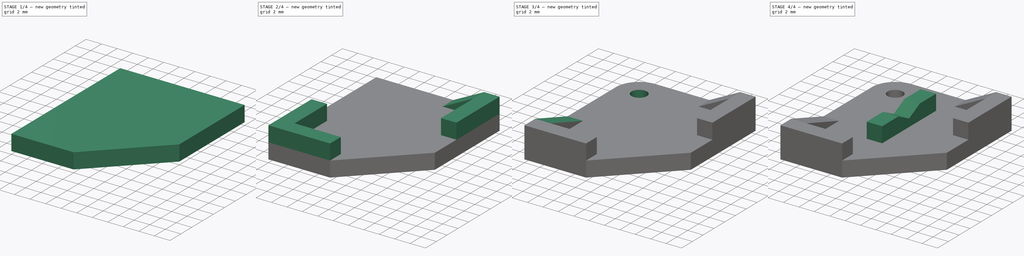
[diagram: build sequence overview — one tinted view per stage of 4, left to right]
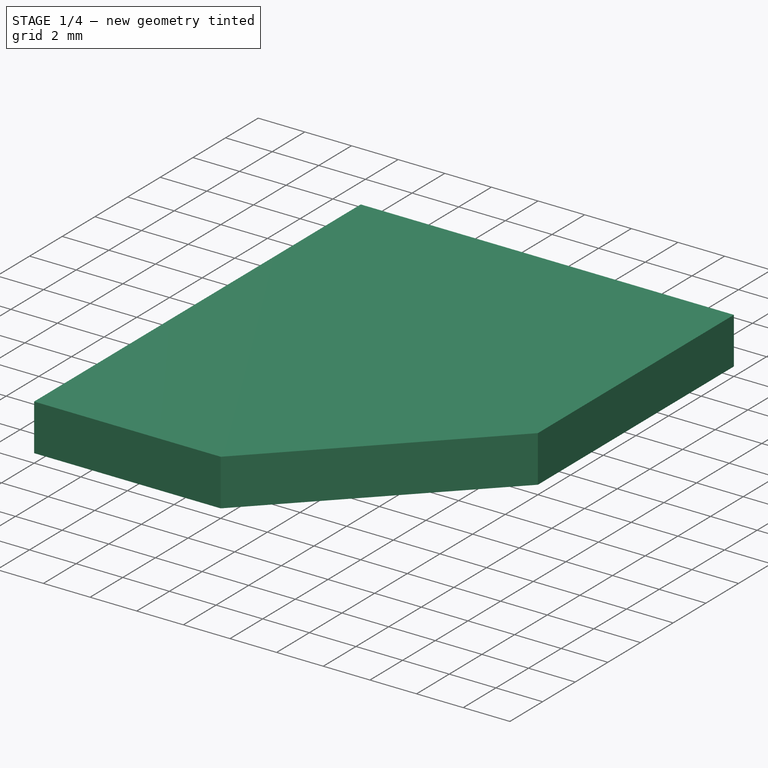
[diagram: stage 1 of 4 — iso view after this stage's code; geometry added in this stage tinted green]
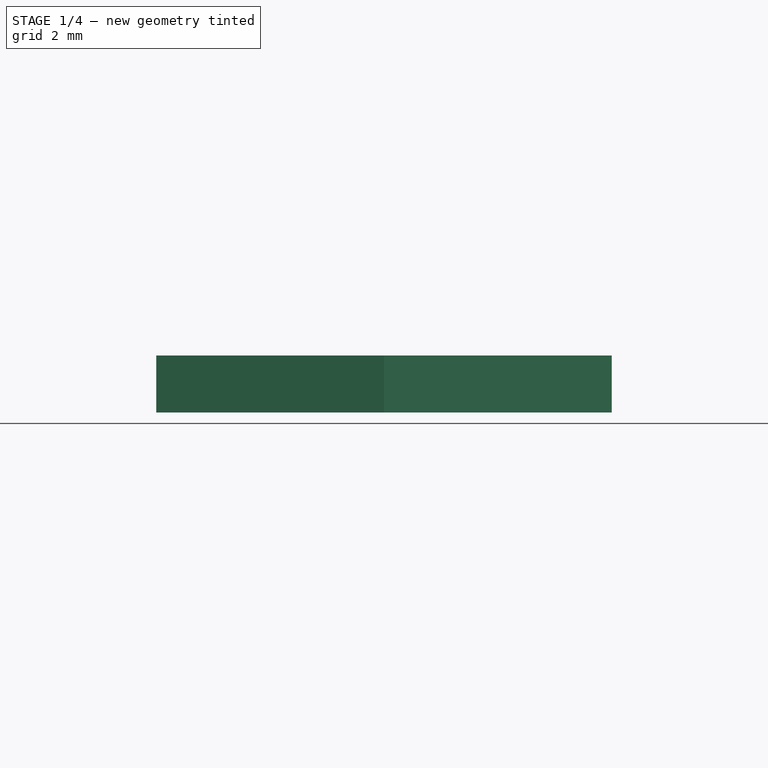
[diagram: stage 1 of 4 — front view after this stage's code; geometry added in this stage tinted green]
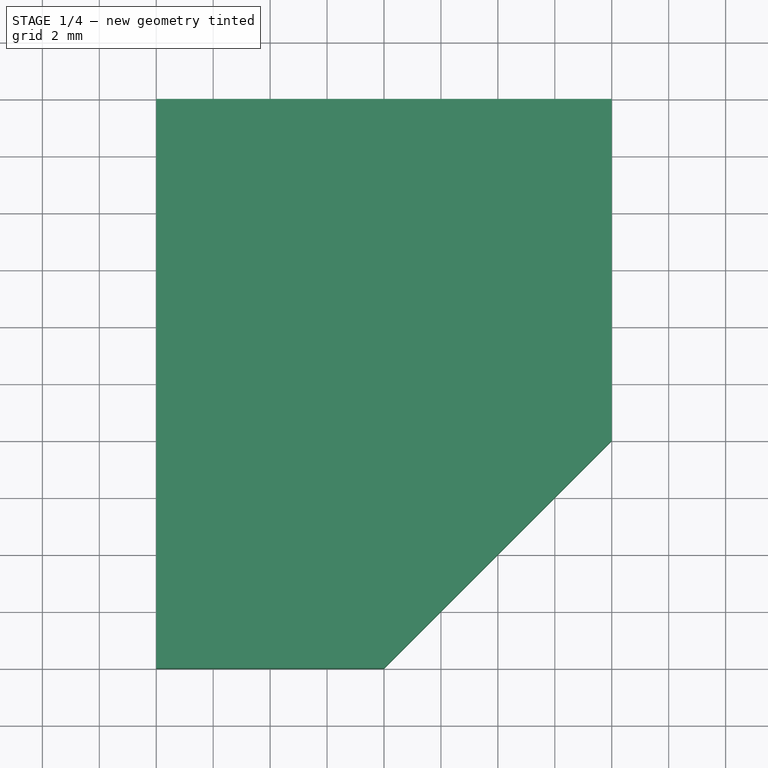
[diagram: stage 1 of 4 — top view after this stage's code; geometry added in this stage tinted green]
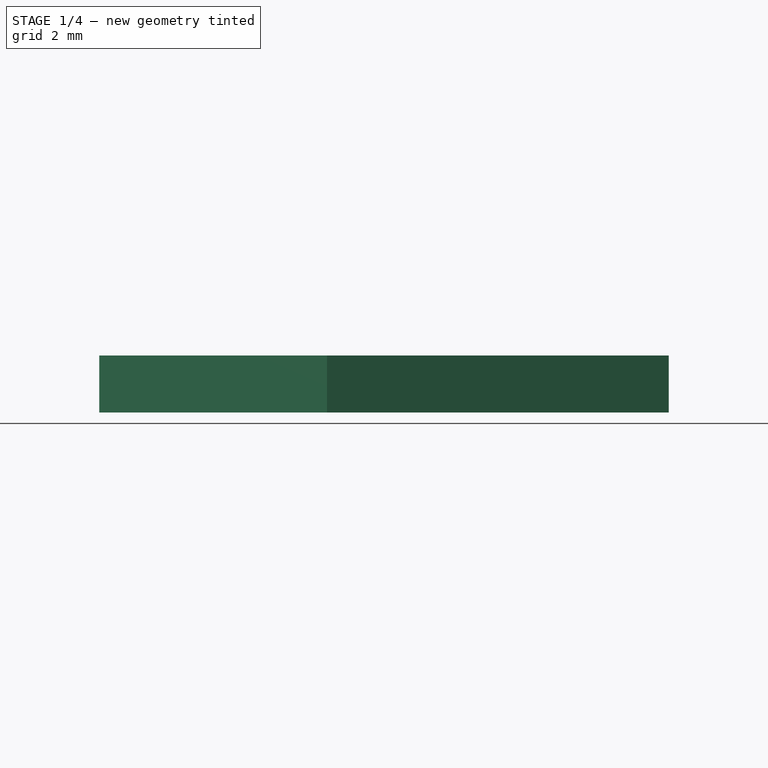
[diagram: stage 1 of 4 — right view after this stage's code; geometry added in this stage tinted green]
FCSTD DOCUMENT  (FreeCAD 0.18R4 (GitTag))
Label: quiz 6
License: All rights reserved
LicenseURL: http://en.wikipedia.org/wiki/All_rights_reserved
objects: Sketcher::SketchObject×8, PartDesign::Pocket×5, PartDesign::Pad×3, PartDesign::Fillet×1, PartDesign::Body×1
note: 26 computed .brp shape members not serialized (recipe doc carries the construction recipe); baked Part::Feature solids carry a one-line shape summary decoded from their .brp

FEATURE [Sketcher::SketchObject] Sketch
  MapMode = 5
  Support = -> [XY_Plane]
  sketch-geometry (4):
    g0: LineSegment StartX=0 StartY=0 StartZ=0 EndX=16 EndY=0 EndZ=0
    g1: LineSegment StartX=16 StartY=0 StartZ=0 EndX=16 EndY=20 EndZ=0
    g2: LineSegment StartX=16 StartY=20 StartZ=0 EndX=0 EndY=20 EndZ=0
    g3: LineSegment StartX=0 StartY=20 StartZ=0 EndX=0 EndY=0 EndZ=0
  constraints (11):
    c: Coincident(g0,g1)
    c: Coincident(g1,g2)
    c: Coincident(g2,g3)
    c: Coincident(g3,g0)
    c: Horizontal(g0)
    c: Horizontal(g2)
    c: Vertical(g1)
    c: Vertical(g3)
    c: Coincident(g0,g-1)
    c: Distance(g0) = 16
    c: Distance(g3) = 20
FEATURE [PartDesign::Pad] Pad
  Length = 2
  Length2 = 100
  Profile = -> Sketch
  Type = 0
FEATURE [Sketcher::SketchObject] Sketch001
  MapMode = 5
  Placement = pos=(0,0,2) rot=(0,0,1;0rad)
  Support = -> [Pad]
  sketch-geometry (3):
    g0: LineSegment StartX=8 StartY=0 StartZ=0 EndX=16 EndY=0 EndZ=0
    g1: LineSegment StartX=16 StartY=0 StartZ=0 EndX=16 EndY=8 EndZ=0
    g2: LineSegment StartX=8 StartY=0 StartZ=0 EndX=16 EndY=8 EndZ=0
  constraints (9):
    c: DistanceY(g-1,g0) = 0
    c: DistanceX(g-1,g0) = 16
    c: Horizontal(g0)
    c: Coincident(g1,g0)
    c: Vertical(g1)
    c: Distance(g1) = 8
    c: Distance(g0) = 8
    c: Coincident(g2,g1)
    c: Coincident(g2,g0)
FEATURE [PartDesign::Pocket] Pocket
  BaseFeature = -> Pad
  Length = 2
  Length2 = 100
  Profile = -> Sketch001
  Type = 0
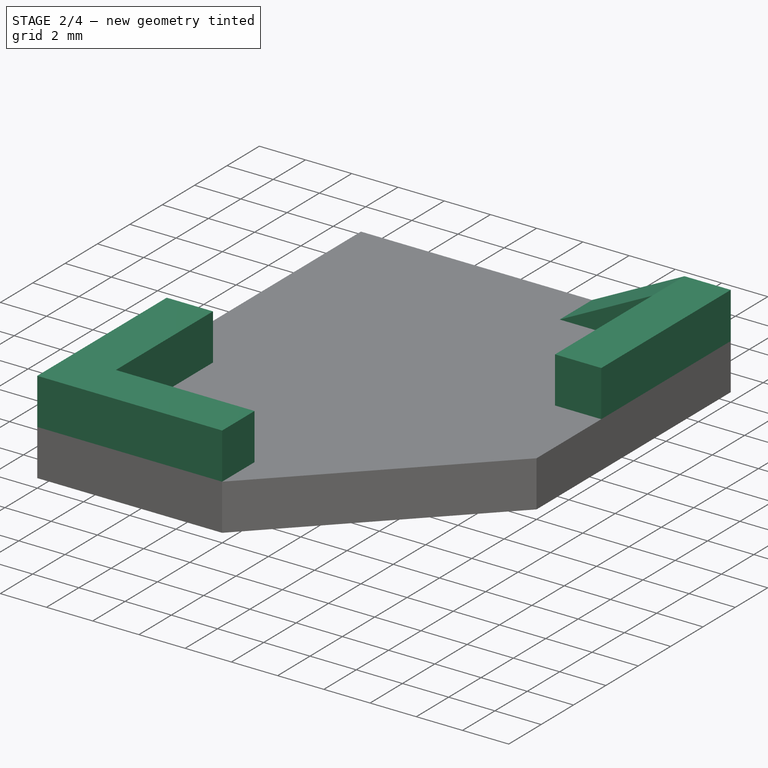
[diagram: stage 2 of 4 — iso view after this stage's code; geometry added in this stage tinted green]
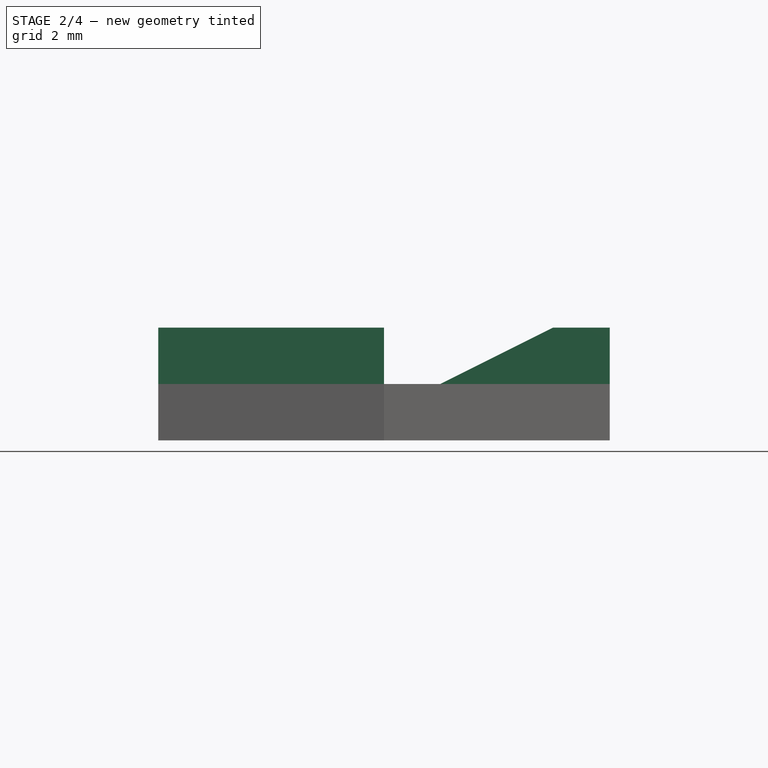
[diagram: stage 2 of 4 — front view after this stage's code; geometry added in this stage tinted green]
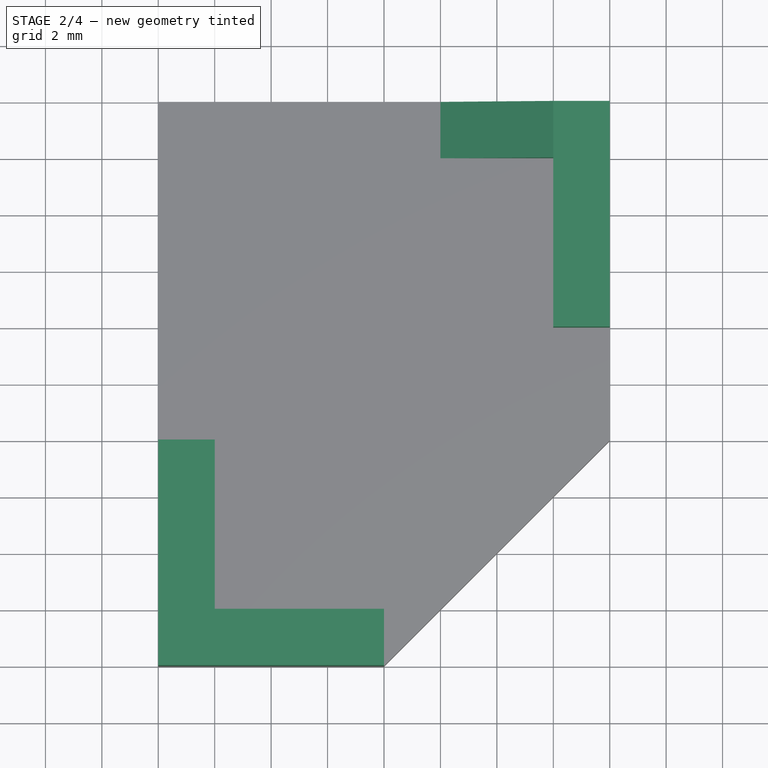
[diagram: stage 2 of 4 — top view after this stage's code; geometry added in this stage tinted green]
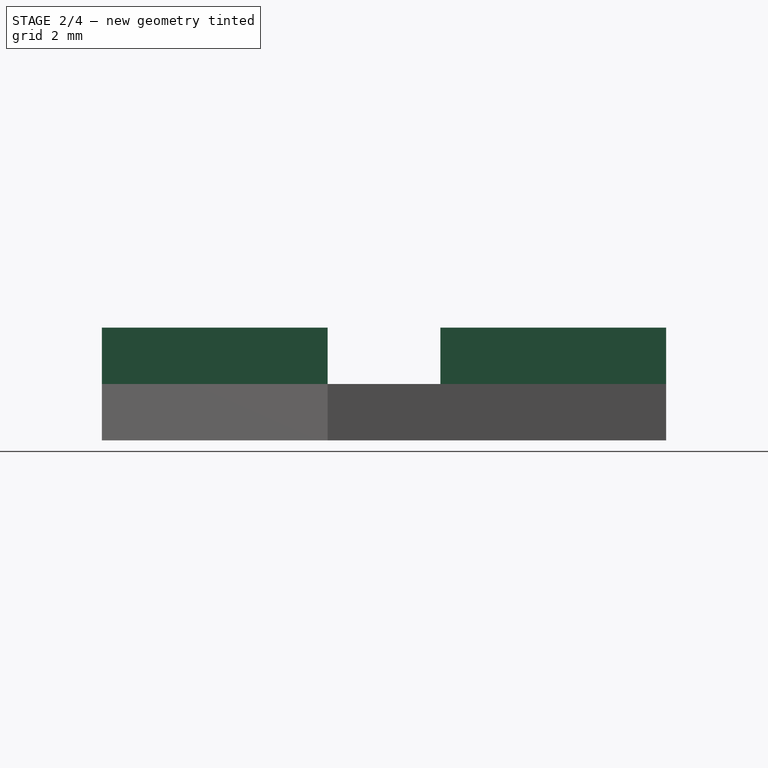
[diagram: stage 2 of 4 — right view after this stage's code; geometry added in this stage tinted green]
FEATURE [Sketcher::SketchObject] Sketch002
  ExternalGeometry = -> [Pocket]
  MapMode = 5
  Placement = pos=(0,0,2) rot=(0,0,1;0rad)
  Support = -> [Pocket]
  sketch-geometry (16):
    g0: LineSegment StartX=0 StartY=0 StartZ=0 EndX=8 EndY=0 EndZ=0
    g1: LineSegment StartX=8 StartY=0 StartZ=0 EndX=8 EndY=2 EndZ=0
    g2: LineSegment StartX=8 StartY=2 StartZ=0 EndX=0 EndY=2 EndZ=0
    g3: LineSegment StartX=0 StartY=2 StartZ=0 EndX=0 EndY=0 EndZ=0
    g4: LineSegment StartX=14 StartY=12 StartZ=0 EndX=16 EndY=12 EndZ=0
    g5: LineSegment StartX=16 StartY=12 StartZ=0 EndX=16 EndY=20 EndZ=0
    g6: LineSegment StartX=16 StartY=20 StartZ=0 EndX=14 EndY=20 EndZ=0
    g7: LineSegment StartX=14 StartY=20 StartZ=0 EndX=14 EndY=12 EndZ=0
    g8: LineSegment StartX=14 StartY=20 StartZ=0 EndX=10 EndY=20 EndZ=0
    g9: LineSegment StartX=10 StartY=20 StartZ=0 EndX=10 EndY=18 EndZ=0
    g10: LineSegment StartX=10 StartY=18 StartZ=0 EndX=14 EndY=18 EndZ=0
    g11: LineSegment StartX=14 StartY=18 StartZ=0 EndX=14 EndY=20 EndZ=0
    g12: LineSegment StartX=0 StartY=2 StartZ=0 EndX=2 EndY=2 EndZ=0
    g13: LineSegment StartX=2 StartY=2 StartZ=0 EndX=2 EndY=8 EndZ=0
    g14: LineSegment StartX=2 StartY=8 StartZ=0 EndX=0 EndY=8 EndZ=0
    g15: LineSegment StartX=0 StartY=8 StartZ=0 EndX=0 EndY=2 EndZ=0
  constraints (44):
    c: Coincident(g0,g1)
    c: Coincident(g1,g2)
    c: Coincident(g2,g3)
    c: Coincident(g3,g0)
    c: Horizontal(g0)
    c: Horizontal(g2)
    c: Vertical(g1)
    c: Vertical(g3)
    c: Coincident(g0,g-1)
    c: Distance(g1) = 2
    c: Distance(g0) = 8
    c: Coincident(g4,g5)
    c: Coincident(g5,g6)
    c: Coincident(g6,g7)
    c: Coincident(g7,g4)
    c: Horizontal(g4)
    c: Horizontal(g6)
    c: Vertical(g5)
    c: Vertical(g7)
    c: Coincident(g5,g-3)
    c: Distance(g5) = 8
    c: Distance(g4) = 2
    c: Coincident(g8,g9)
    c: Coincident(g9,g10)
    c: Coincident(g10,g11)
    c: Coincident(g11,g8)
    c: Horizontal(g8)
    c: Horizontal(g10)
    c: Vertical(g9)
    c: Vertical(g11)
    c: Coincident(g8,g6)
    c: Distance(g8) = 4
    c: Distance(g9) = 2
    c: Coincident(g12,g13)
    c: Coincident(g13,g14)
    c: Coincident(g14,g15)
    c: Coincident(g15,g12)
    c: Horizontal(g12)
    c: Horizontal(g14)
    c: Vertical(g13)
    c: Vertical(g15)
    c: Coincident(g12,g2)
    c: Distance(g13) = 6
    c: Distance(g14) = 2
FEATURE [PartDesign::Pad] Pad001
  BaseFeature = -> Pocket
  Length = 2
  Length2 = 100
  Profile = -> Sketch002
  Type = 0
FEATURE [Sketcher::SketchObject] Sketch003
  ExternalGeometry = -> [Pad001]
  MapMode = 5
  Placement = pos=(0,18,0) rot=(1,0,0;1.5708rad)
  Support = -> [Pad001]
  sketch-geometry (3):
    g0: LineSegment StartX=10 StartY=2 StartZ=0 EndX=14 EndY=4 EndZ=0
    g1: LineSegment StartX=10 StartY=4 StartZ=0 EndX=10 EndY=2 EndZ=0
    g2: LineSegment StartX=10 StartY=4 StartZ=0 EndX=14 EndY=4 EndZ=0
  constraints (6):
    c: Coincident(g0,g-3)
    c: Coincident(g-4,g0)
    c: Coincident(g2,g-4)
    c: Coincident(g2,g0)
    c: Coincident(g1,g2)
    c: Coincident(g1,g0)
FEATURE [PartDesign::Pocket] Pocket001
  BaseFeature = -> Pad001
  Length = 2
  Length2 = 100
  Profile = -> Sketch003
  Type = 0
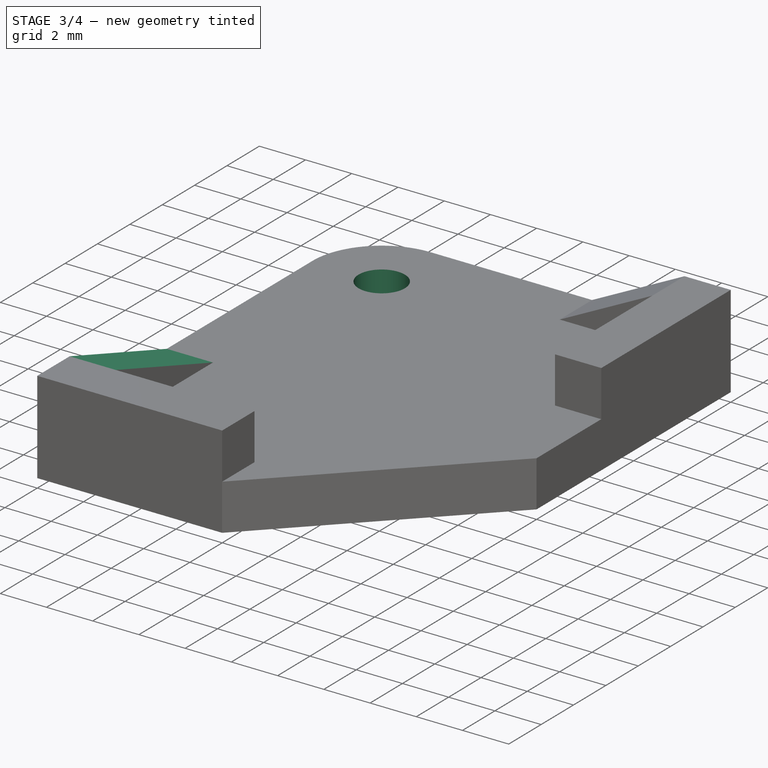
[diagram: stage 3 of 4 — iso view after this stage's code; geometry added in this stage tinted green]
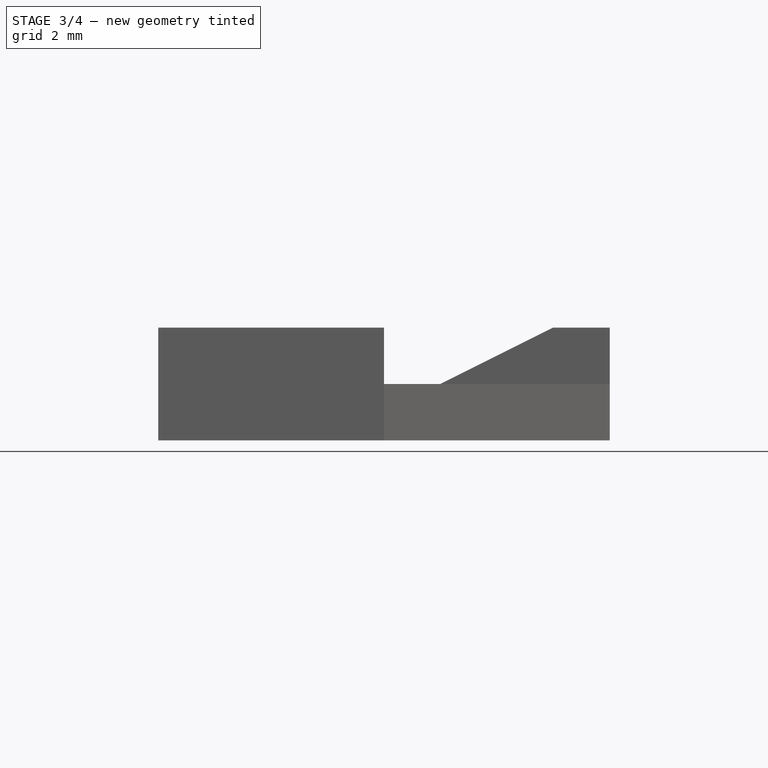
[diagram: stage 3 of 4 — front view after this stage's code; geometry added in this stage tinted green]
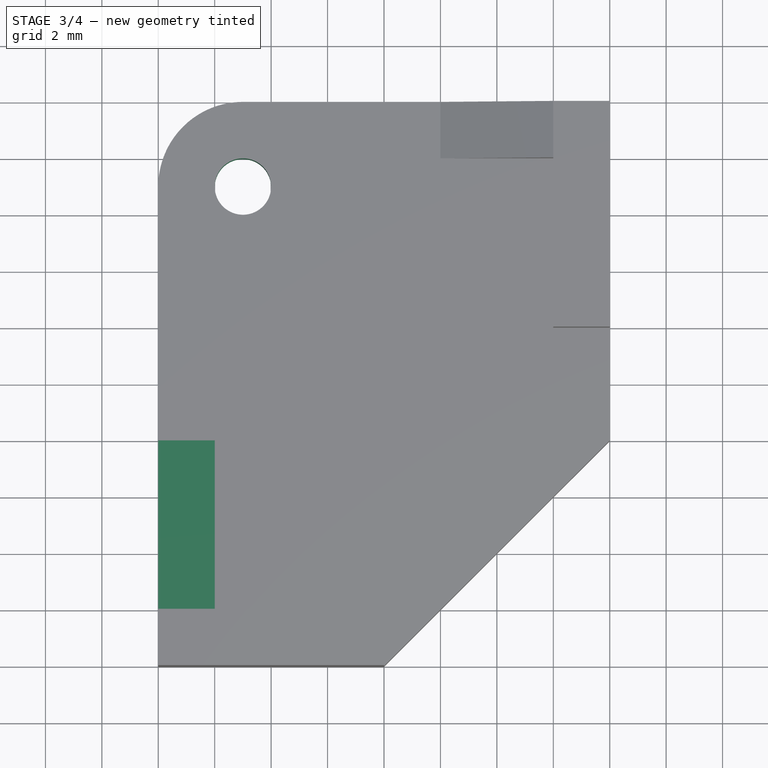
[diagram: stage 3 of 4 — top view after this stage's code; geometry added in this stage tinted green]
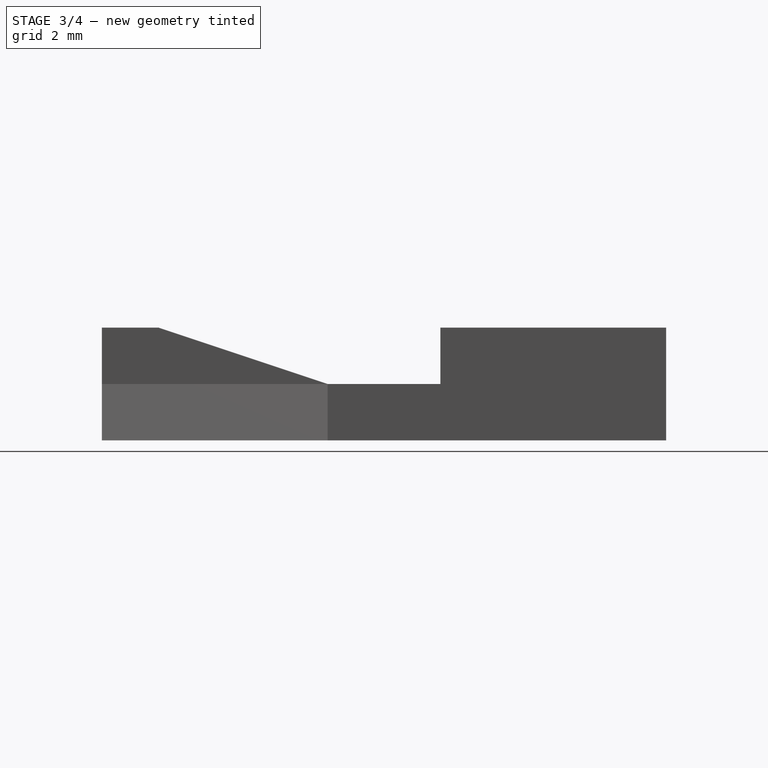
[diagram: stage 3 of 4 — right view after this stage's code; geometry added in this stage tinted green]
FEATURE [Sketcher::SketchObject] Sketch004
  ExternalGeometry = -> [Pocket001]
  MapMode = 5
  Placement = pos=(2,0,0) rot=(0.57735,0.57735,0.57735;2.0944rad)
  Support = -> [Pocket001]
  sketch-geometry (3):
    g0: LineSegment StartX=2 StartY=4 StartZ=0 EndX=8 EndY=2 EndZ=0
    g1: LineSegment StartX=2 StartY=4 StartZ=0 EndX=8 EndY=4 EndZ=0
    g2: LineSegment StartX=8 StartY=4 StartZ=0 EndX=8 EndY=2 EndZ=0
  constraints (6):
    c: Coincident(g0,g-3)
    c: Coincident(g0,g-4)
    c: Coincident(g2,g0)
    c: Coincident(g2,g-4)
    c: Coincident(g1,g2)
    c: Coincident(g1,g0)
FEATURE [PartDesign::Pocket] Pocket002
  BaseFeature = -> Pocket001
  Length = 2
  Length2 = 100
  Profile = -> Sketch004
  Type = 0
FEATURE [PartDesign::Fillet] Fillet
  Base = -> Pocket002 [Edge14]
  BaseFeature = -> Pocket002
  Radius = 3
FEATURE [Sketcher::SketchObject] Sketch005
  MapMode = 5
  Placement = pos=(0,0,2) rot=(0,0,1;0rad)
  Support = -> [Fillet]
  sketch-geometry (1):
    g0: Circle CenterX=3 CenterY=17 CenterZ=0 NormalX=0 NormalY=0 NormalZ=1 AngleXU=0 Radius=1
  constraints (3):
    c: DistanceX(g-1,g0) = 3
    c: DistanceY(g-1,g0) = 17
    c: Radius(g0) = 1
FEATURE [PartDesign::Pocket] Pocket003
  BaseFeature = -> Fillet
  Length = 2
  Length2 = 100
  Profile = -> Sketch005
  Type = 0
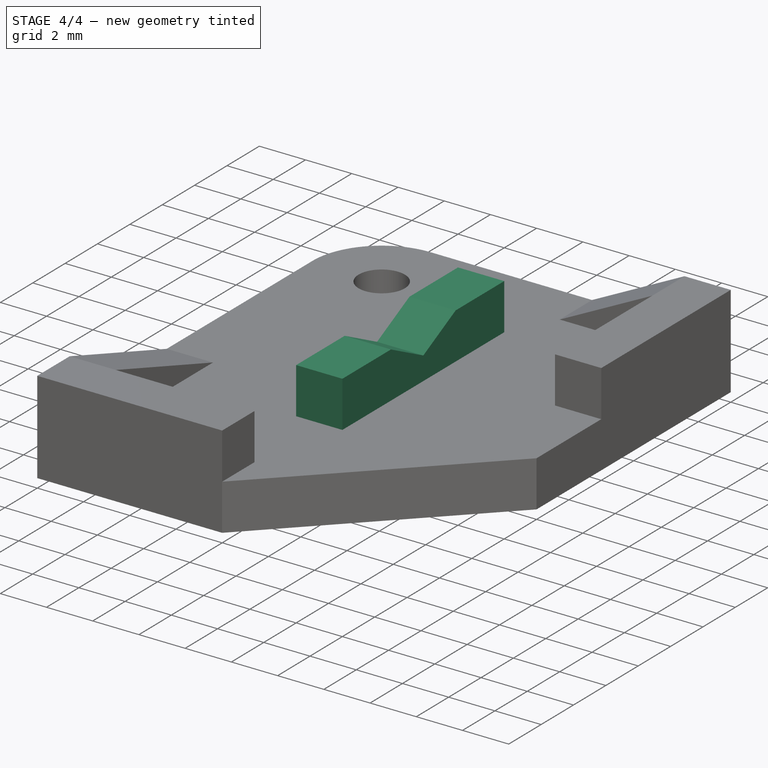
[diagram: stage 4 of 4 — iso view after this stage's code; geometry added in this stage tinted green]
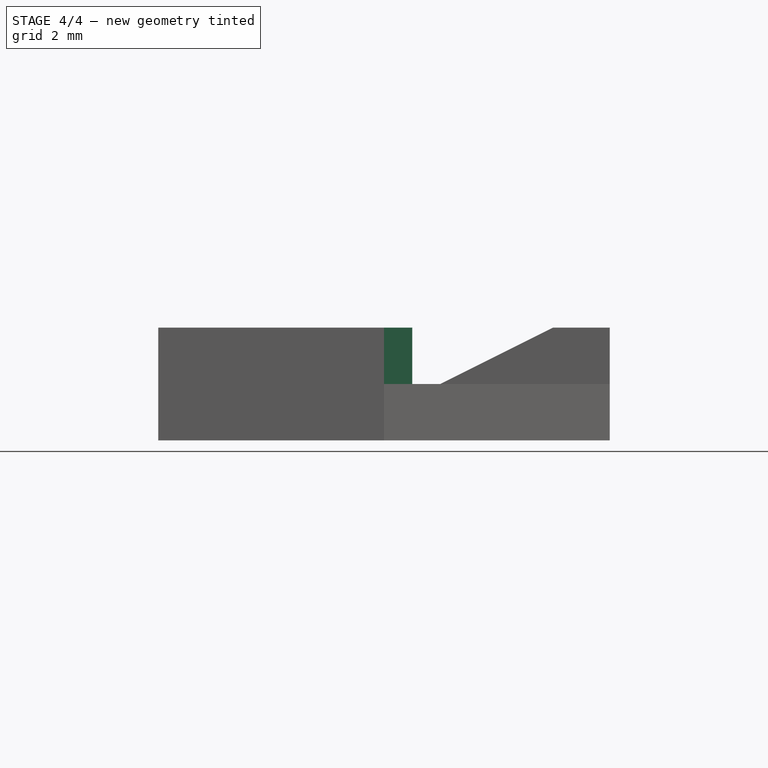
[diagram: stage 4 of 4 — front view after this stage's code; geometry added in this stage tinted green]
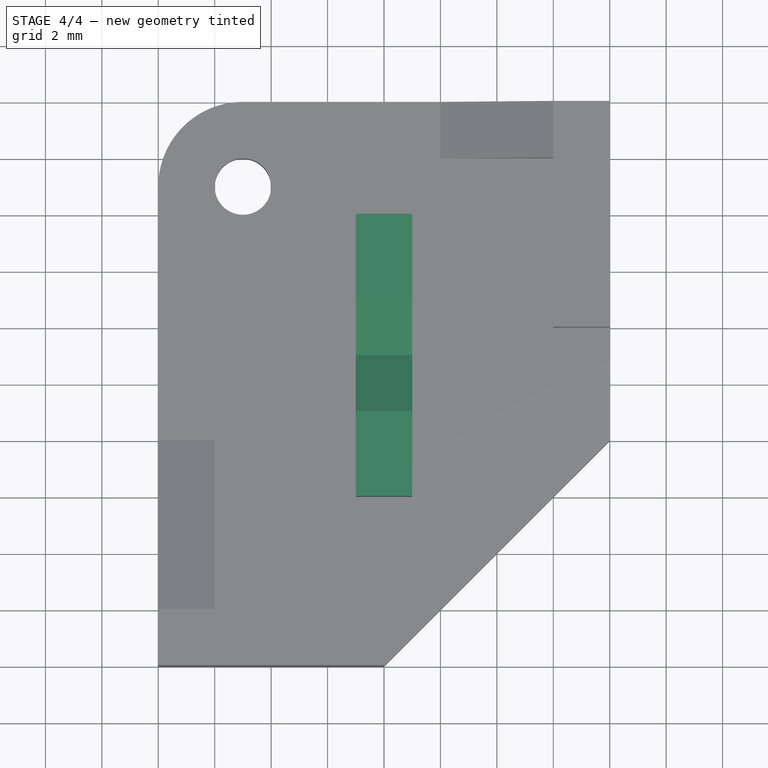
[diagram: stage 4 of 4 — top view after this stage's code; geometry added in this stage tinted green]
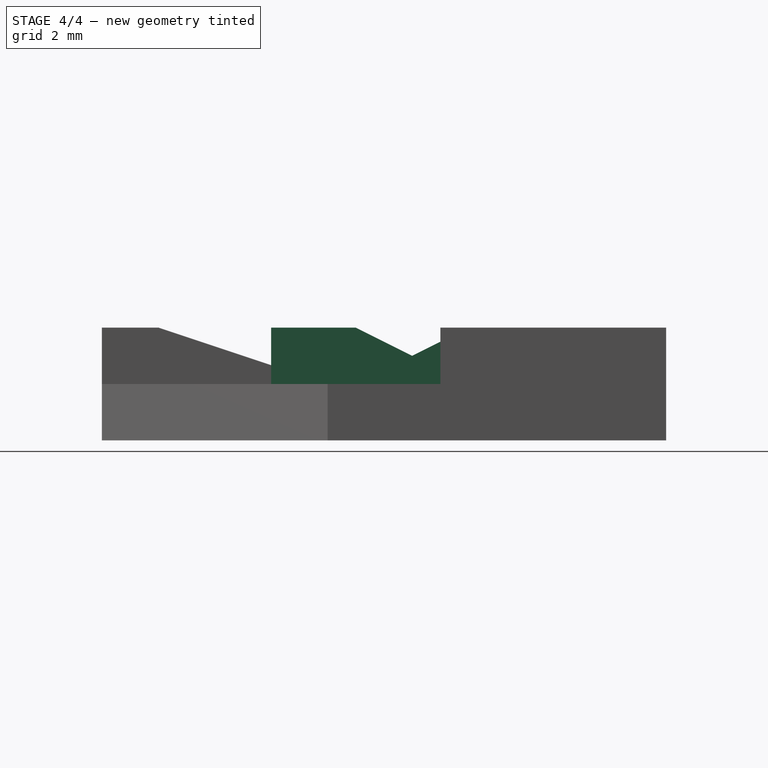
[diagram: stage 4 of 4 — right view after this stage's code; geometry added in this stage tinted green]
FEATURE [Sketcher::SketchObject] Sketch006
  MapMode = 5
  Placement = pos=(0,0,2) rot=(0,0,1;0rad)
  Support = -> [Pocket003]
  sketch-geometry (4):
    g0: LineSegment StartX=7 StartY=6 StartZ=0 EndX=9 EndY=6 EndZ=0
    g1: LineSegment StartX=9 StartY=6 StartZ=0 EndX=9 EndY=16 EndZ=0
    g2: LineSegment StartX=9 StartY=16 StartZ=0 EndX=7 EndY=16 EndZ=0
    g3: LineSegment StartX=7 StartY=16 StartZ=0 EndX=7 EndY=6 EndZ=0
  constraints (12):
    c: Coincident(g0,g1)
    c: Coincident(g1,g2)
    c: Coincident(g2,g3)
    c: Coincident(g3,g0)
    c: Horizontal(g0)
    c: Horizontal(g2)
    c: Vertical(g1)
    c: Vertical(g3)
    c: DistanceY(g-1,g0) = 6
    c: DistanceX(g-1,g0) = 7
    c: Distance(g0) = 2
    c: Distance(g3) = 10
FEATURE [PartDesign::Pad] Pad002
  BaseFeature = -> Pocket003
  Length = 2
  Length2 = 100
  Profile = -> Sketch006
  Type = 0
FEATURE [Sketcher::SketchObject] Sketch007
  ExternalGeometry = -> [Pad002]
  MapMode = 5
  Placement = pos=(9,0,0) rot=(0.57735,0.57735,0.57735;2.0944rad)
  Support = -> [Pad002]
  sketch-geometry (3):
    g0: LineSegment StartX=9 StartY=4 StartZ=0 EndX=13 EndY=4 EndZ=0
    g1: LineSegment StartX=11 StartY=3 StartZ=0 EndX=13 EndY=4 EndZ=0
    g2: LineSegment StartX=11 StartY=3 StartZ=0 EndX=9 EndY=4 EndZ=0
  constraints (9):
    c: DistanceY(g0,g-3) = 0
    c: Horizontal(g0)
    c: Distance(g0) = 4
    c: Coincident(g1,g0)
    c: DistanceX(g-3,g0) = 3
    c: Coincident(g2,g0)
    c: Coincident(g2,g1)
    c: DistanceX(g0,g1) = 2
    c: DistanceY(g1,g0) = 1
FEATURE [PartDesign::Pocket] Pocket004
  BaseFeature = -> Pad002
  Length = 2
  Length2 = 100
  Profile = -> Sketch007
  Type = 0
FEATURE [PartDesign::Body] Body
  Group = -> [Sketch,Pad,Sketch001,Pocket,Sketch002,Pad001,Sketch003,Pocket001,Sketch004,Pocket002,Fillet,Sketch005,Pocket003,Sketch006,Pad002,Sketch007,Pocket004]
  Origin = -> Origin
  Tip = -> Pocket004
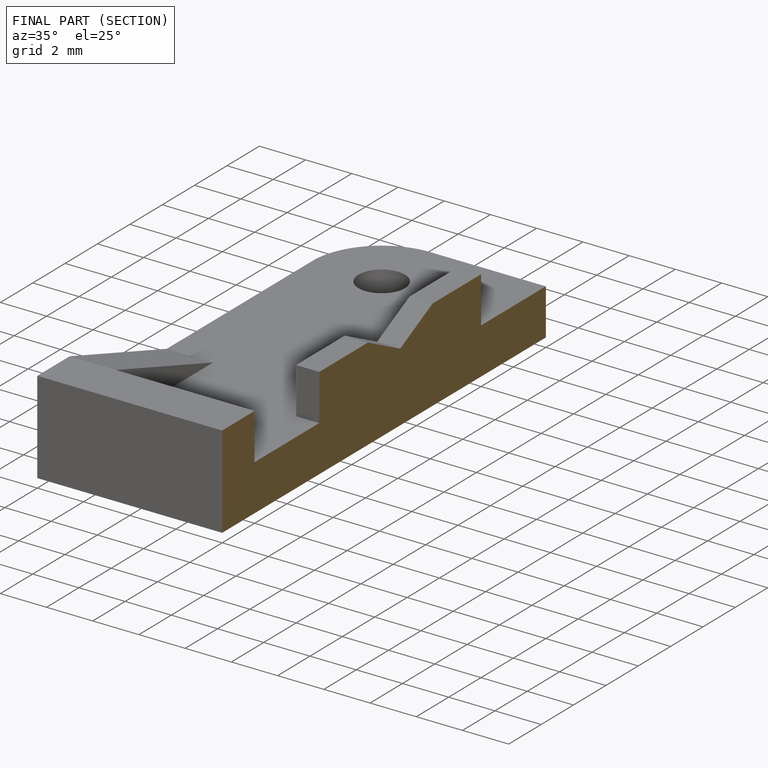
[diagram: finished part — half-section view (interior)]
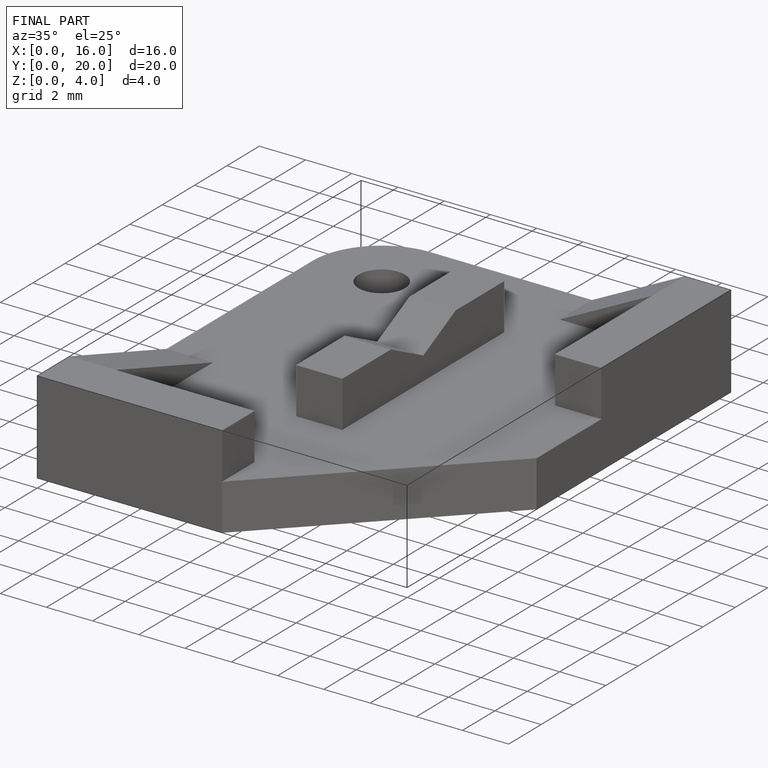
[diagram: finished part — iso view with bounding-box wireframe]
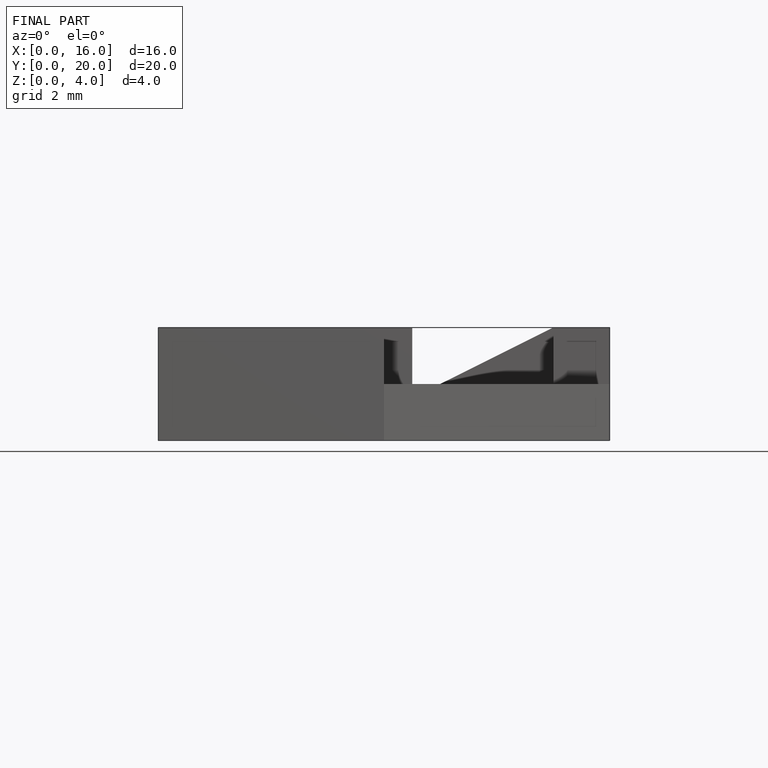
[diagram: finished part — front view with bounding-box wireframe]
